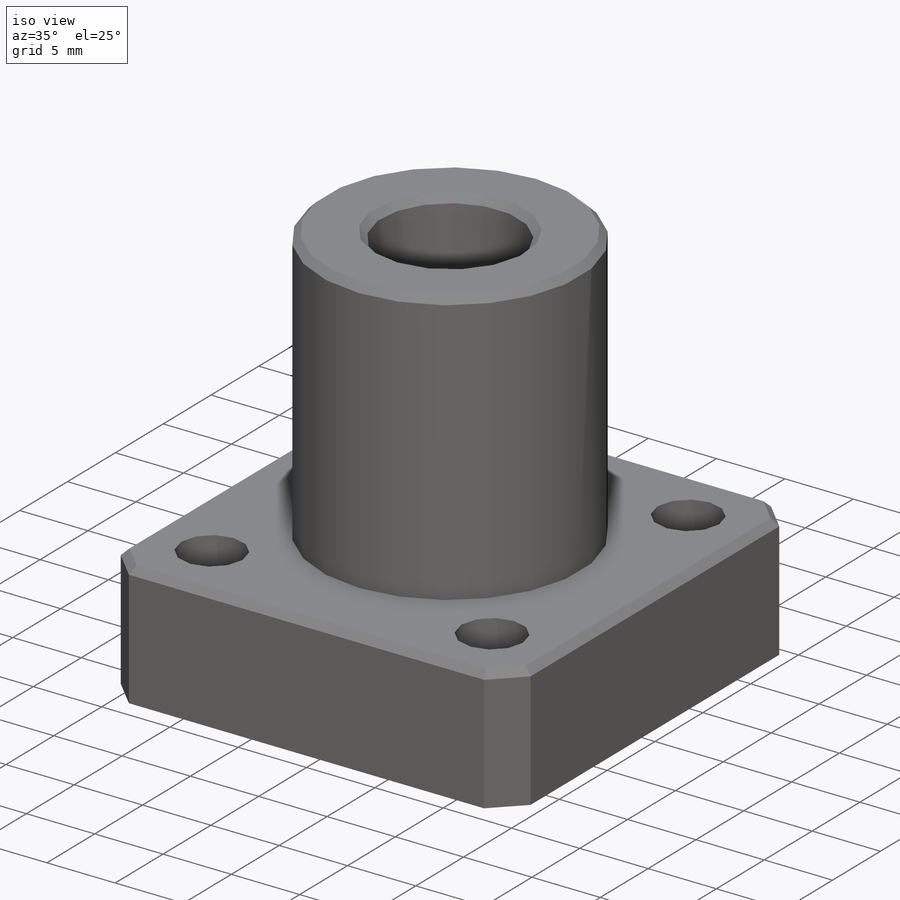
[diagram: iso view]
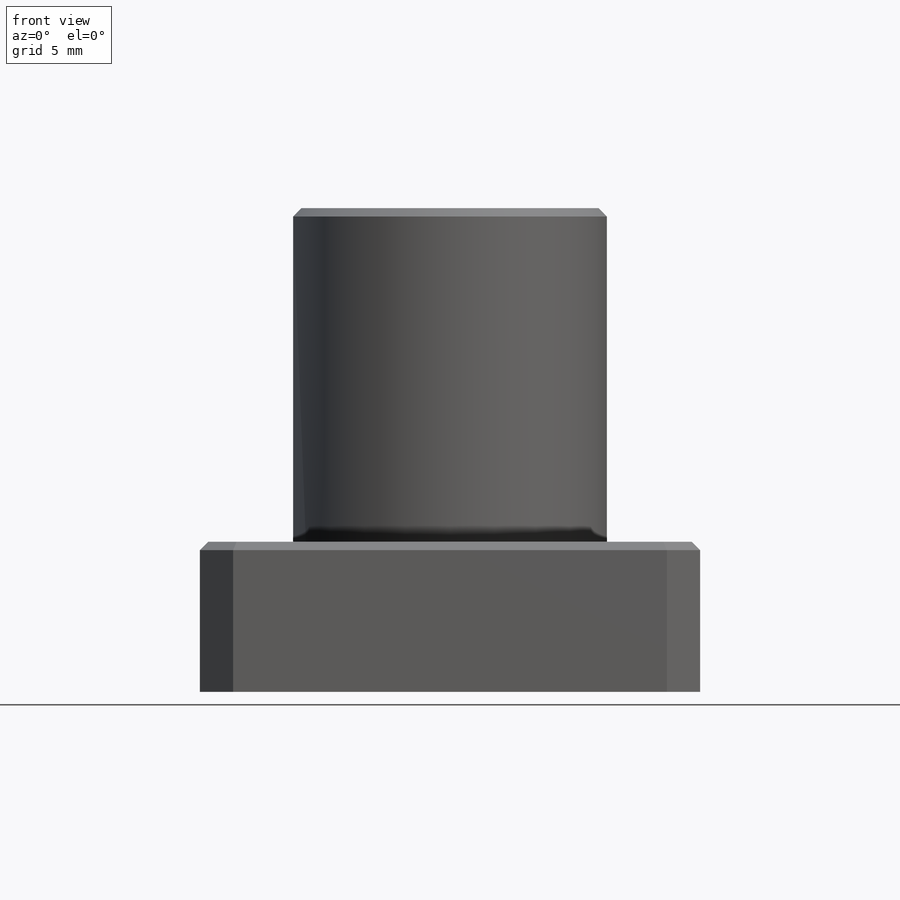
[diagram: front view]
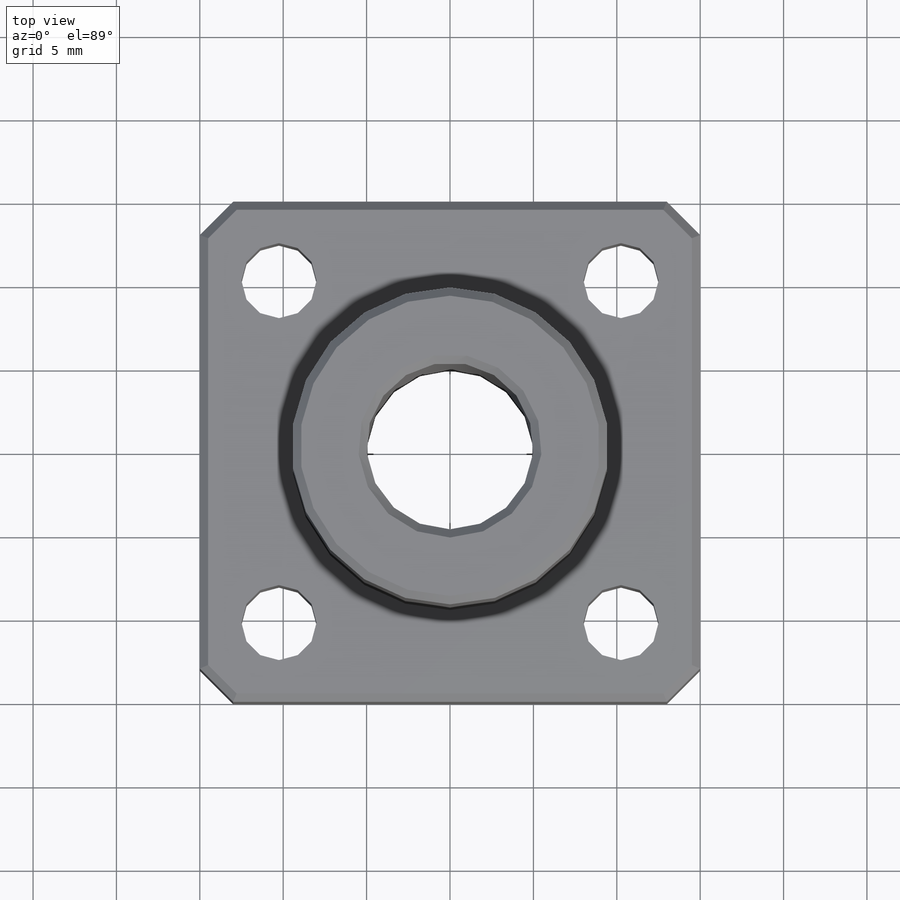
[diagram: top view]
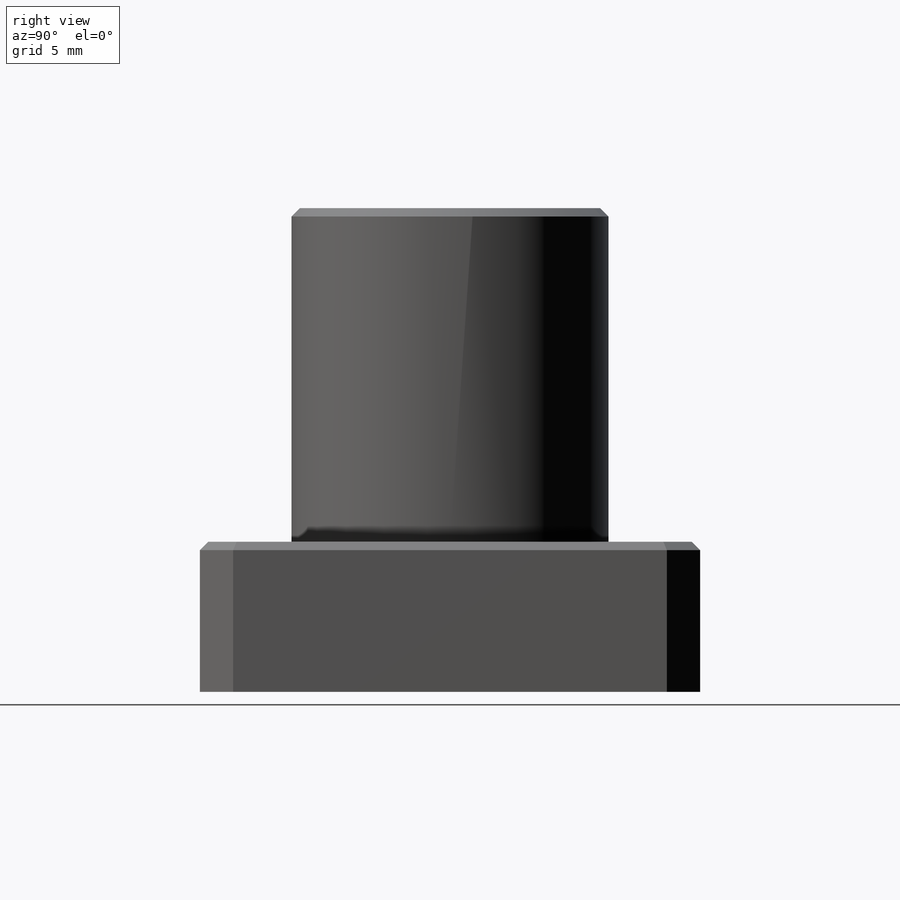
[diagram: right view]
SOLIDWORKS PART (.sldprt)
format: sldprt  version: not decoded by parser v0  size: 166,400 bytes
history: native  units: mm
features: plane x3, sketch x3, extrude x2, chamfer x2, material x1, cut_extrude x1 (+9 scaffold rows collapsed)
feature tree (21):
  scaffold x9  (default folders/planes/origin — collapsed)
  material  "Matériau <non spécifié>"
  plane  "Face"
  plane  "Dessus"
  plane  "Droite"
  sketch  "Esquisse1"  dims[c1.D2=4.5mm c1.D1=30.0mm c1.D3=24.0mm c1.D4=~18.261673mm c2.D3=29.0mm]
  extrude  "Extrusion1"  Depth=9mm
  sketch  "Esquisse2"  dims[D1=19.0mm]
  extrude  "Extrusion2"  Depth=20mm
  chamfer  "Chanfrein1"  Distance=2mm Angle=45deg
  sketch  "Esquisse3"  dims[D1=10.0mm]
  cut_extrude  "Extrusion3"  [1 undecoded]
  chamfer  "Chanfrein2"  Distance=0.5mm Angle=45deg
decode coverage: 7 of 8 modeling features carry decoded parameters
note: ~ marks probable driven/reference dimensions
note: 1 parameter value undecoded
note: suppression state not decoded; provenance and decode notes live in map.json
